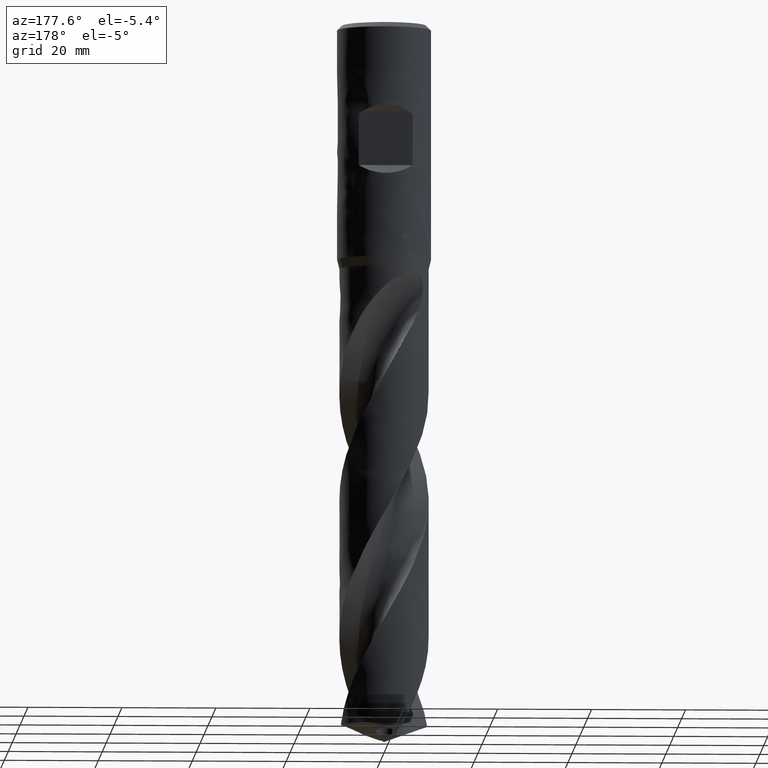
[diagram: clean part render]
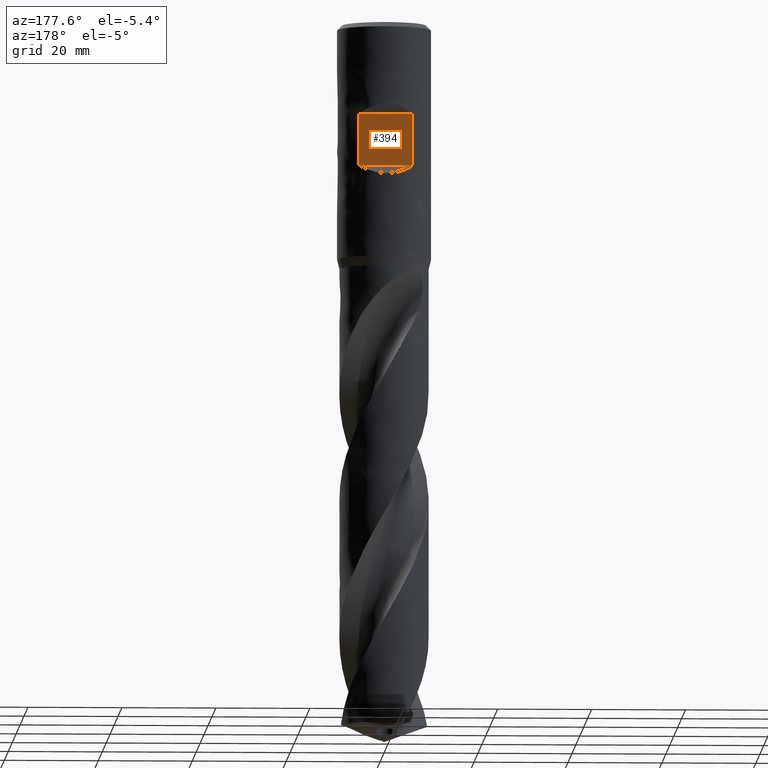
[diagram: same view with one face highlighted and labeled with its STEP entity id]
A machine part, auxiliary view. The second image highlights one B-rep face of the part: STEP entity #394.
In plain terms, the highlighted planar face has unit normal (0, 1, 0).
Its self-contained STEP definition (entity closure, byte-faithful):
#187 = VERTEX_POINT('', #188);
#188 = CARTESIAN_POINT('', (-5.72363520850167, 8.2, -19.5));
#189 = VERTEX_POINT('', #190);
#190 = CARTESIAN_POINT('', (5.72363520850168, 8.2, -19.5));
#278 = EDGE_CURVE('', #187, #279, #281, .T.);
#279 = VERTEX_POINT('', #280);
#280 = CARTESIAN_POINT('', (-5.72363520850167, 8.2, -30.5));
#281 = LINE('', #282, #283);
#282 = CARTESIAN_POINT('', (-5.72363520850167, 8.2, -19.5));
#283 = VECTOR('', #284, 11.);
#284 = DIRECTION('', (1.77635683940025E-15, 1.77635683940025E-15, -11.));
#287 = VERTEX_POINT('', #288);
#288 = CARTESIAN_POINT('', (5.72363520850168, 8.2, -30.5));
#370 = EDGE_CURVE('', #189, #287, #371, .T.);
#371 = LINE('', #372, #373);
#372 = CARTESIAN_POINT('', (5.72363520850168, 8.2, -19.5));
#373 = VECTOR('', #374, 11.);
#374 = DIRECTION('', (-2.66453525910038E-15, 1.77635683940025E-15, -11.));
#394 = ADVANCED_FACE('', (#395), #411, .T.);
#395 = FACE_OUTER_BOUND('', #396, .T.);
#396 = EDGE_LOOP('', (#397, #398, #404, #405));
#397 = ORIENTED_EDGE('', *, *, #370, .T.);
#398 = ORIENTED_EDGE('', *, *, #399, .T.);
#399 = EDGE_CURVE('', #287, #279, #400, .T.);
#400 = LINE('', #401, #402);
#401 = CARTESIAN_POINT('', (5.72363520850167, 8.2, -30.5));
#402 = VECTOR('', #403, 11.4472704170033);
#403 = DIRECTION('', (-11.4472704170033, 0., 0.));
#404 = ORIENTED_EDGE('', *, *, #278, .F.);
#405 = ORIENTED_EDGE('', *, *, #406, .F.);
#406 = EDGE_CURVE('', #189, #187, #407, .T.);
#407 = LINE('', #408, #409);
#408 = CARTESIAN_POINT('', (5.72363520850168, 8.2, -19.5));
#409 = VECTOR('', #410, 11.4472704170034);
#410 = DIRECTION('', (-11.4472704170034, 1.77635683940025E-15, 0.));
#411 = PLANE('', #412);
#412 = AXIS2_PLACEMENT_3D('', #413, #414, #415);
#413 = CARTESIAN_POINT('', (10., 8.2, -30.5));
#414 = DIRECTION('', (1.77635683940025E-16, 1., 0.));
#415 = DIRECTION('', (-1., 1.77635683940025E-16, 0.));